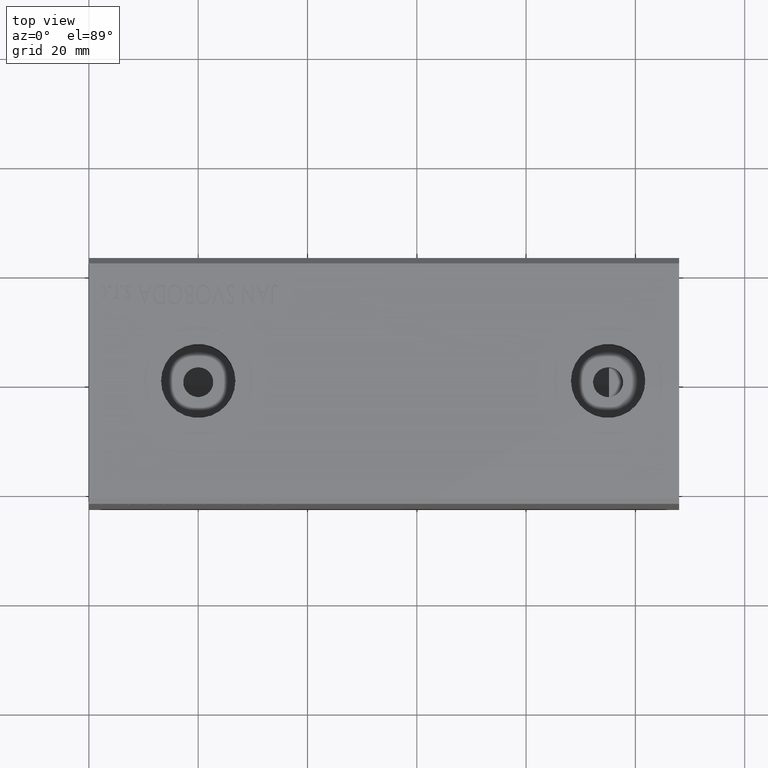
[diagram: clean part render]
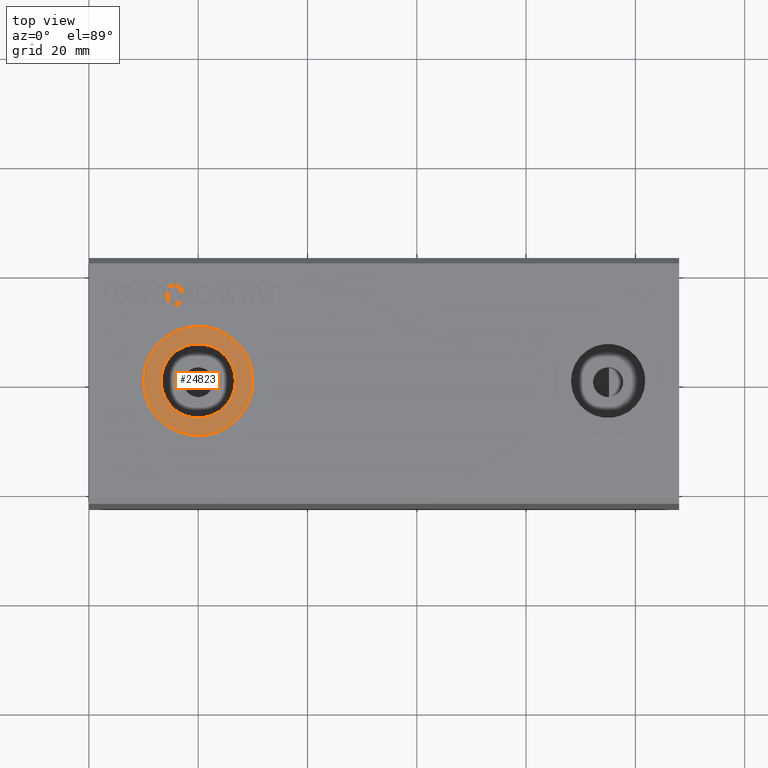
[diagram: same view with one face highlighted and labeled with its STEP entity id]
A machine part, top view. The second image highlights one B-rep face of the part: STEP entity #24823.
In plain terms, the highlighted planar face has unit normal (0, 0, 1).
Its self-contained STEP definition (entity closure, byte-faithful):
#449 = CARTESIAN_POINT ( 'NONE',  ( 19.99999999999999645, 2.602085213965210642E-15, 32.39999999999999858 ) ) ;
#817 = DIRECTION ( 'NONE',  ( 1.000000000000000000, 0.000000000000000000, 0.000000000000000000 ) ) ;
#2346 = VERTEX_POINT ( 'NONE', #39466 ) ;
#5126 = VERTEX_POINT ( 'NONE', #25378 ) ;
#7442 = EDGE_CURVE ( 'NONE', #39478, #5126, #21865, .T. ) ;
#7916 = CIRCLE ( 'NONE', #11357, 10.00000000000000178 ) ;
#7977 = ORIENTED_EDGE ( 'NONE', *, *, #27930, .F. ) ;
#8017 = DIRECTION ( 'NONE',  ( 1.000000000000000000, 0.000000000000000000, 0.000000000000000000 ) ) ;
#9148 = CARTESIAN_POINT ( 'NONE',  ( 30.00000000000000000, 2.602085213965210642E-15, 32.39999999999999858 ) ) ;
#10356 = DIRECTION ( 'NONE',  ( 1.000000000000000000, 0.000000000000000000, 0.000000000000000000 ) ) ;
#10519 = CARTESIAN_POINT ( 'NONE',  ( 19.99999999999999645, 2.602085213965210642E-15, 32.39999999999999858 ) ) ;
#11357 = AXIS2_PLACEMENT_3D ( 'NONE', #24299, #23875, #817 ) ;
#11864 = CARTESIAN_POINT ( 'NONE',  ( 19.99999999999999645, 2.602085213965210642E-15, 32.39999999999999858 ) ) ;
#12049 = CIRCLE ( 'NONE', #42316, 6.799999999999997158 ) ;
#12341 = FACE_OUTER_BOUND ( 'NONE', #30351, .T. ) ;
#12912 = EDGE_LOOP ( 'NONE', ( #7977, #35367 ) ) ;
#13933 = ORIENTED_EDGE ( 'NONE', *, *, #26568, .T. ) ;
#15363 = FACE_BOUND ( 'NONE', #12912, .T. ) ;
#20225 = DIRECTION ( 'NONE',  ( 0.000000000000000000, 0.000000000000000000, 1.000000000000000000 ) ) ;
#20446 = DIRECTION ( 'NONE',  ( 1.000000000000000000, 0.000000000000000000, 0.000000000000000000 ) ) ;
#21865 = CIRCLE ( 'NONE', #41814, 6.799999999999997158 ) ;
#22364 = DIRECTION ( 'NONE',  ( 0.000000000000000000, 0.000000000000000000, 1.000000000000000000 ) ) ;
#23875 = DIRECTION ( 'NONE',  ( 0.000000000000000000, 0.000000000000000000, 1.000000000000000000 ) ) ;
#24299 = CARTESIAN_POINT ( 'NONE',  ( 19.99999999999999645, 2.602085213965210642E-15, 32.39999999999999858 ) ) ;
#24823 = ADVANCED_FACE ( 'NONE', ( #15363, #12341 ), #25278, .T. ) ;
#25278 = PLANE ( 'NONE',  #37441 ) ;
#25378 = CARTESIAN_POINT ( 'NONE',  ( 26.79999999999999361, 2.602085213965210642E-15, 32.39999999999999858 ) ) ;
#25837 = CIRCLE ( 'NONE', #41658, 10.00000000000000178 ) ;
#26568 = EDGE_CURVE ( 'NONE', #2346, #30633, #7916, .T. ) ;
#27930 = EDGE_CURVE ( 'NONE', #5126, #39478, #12049, .T. ) ;
#28724 = DIRECTION ( 'NONE',  ( 0.000000000000000000, 0.000000000000000000, 1.000000000000000000 ) ) ;
#30285 = ORIENTED_EDGE ( 'NONE', *, *, #34648, .T. ) ;
#30351 = EDGE_LOOP ( 'NONE', ( #30285, #13933 ) ) ;
#30633 = VERTEX_POINT ( 'NONE', #9148 ) ;
#31306 = CARTESIAN_POINT ( 'NONE',  ( 13.19999999999999751, 3.434845037385410359E-15, 32.39999999999999858 ) ) ;
#34648 = EDGE_CURVE ( 'NONE', #30633, #2346, #25837, .T. ) ;
#35367 = ORIENTED_EDGE ( 'NONE', *, *, #7442, .F. ) ;
#37441 = AXIS2_PLACEMENT_3D ( 'NONE', #39057, #28724, #41428 ) ;
#39057 = CARTESIAN_POINT ( 'NONE',  ( 19.99999999999999645, 2.602085213965210642E-15, 32.39999999999999858 ) ) ;
#39466 = CARTESIAN_POINT ( 'NONE',  ( 9.999999999999996447, 3.826732013112564490E-15, 32.39999999999999858 ) ) ;
#39478 = VERTEX_POINT ( 'NONE', #31306 ) ;
#39875 = DIRECTION ( 'NONE',  ( 0.000000000000000000, 0.000000000000000000, 1.000000000000000000 ) ) ;
#41428 = DIRECTION ( 'NONE',  ( 1.000000000000000000, 0.000000000000000000, -0.000000000000000000 ) ) ;
#41658 = AXIS2_PLACEMENT_3D ( 'NONE', #10519, #20225, #20446 ) ;
#41814 = AXIS2_PLACEMENT_3D ( 'NONE', #11864, #22364, #8017 ) ;
#42316 = AXIS2_PLACEMENT_3D ( 'NONE', #449, #39875, #10356 ) ;